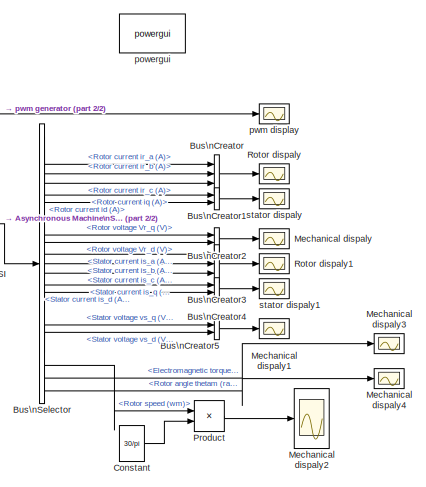
[diagram: root canvas - part 1/2, right side, full height]
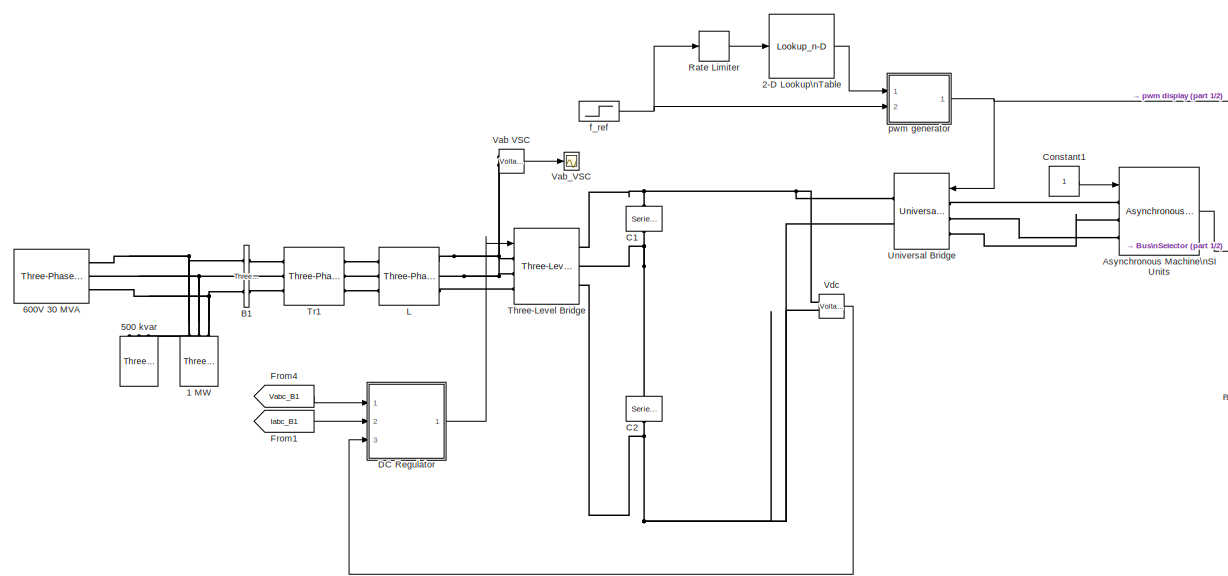
[diagram: root canvas - part 2/2, most of the canvas]
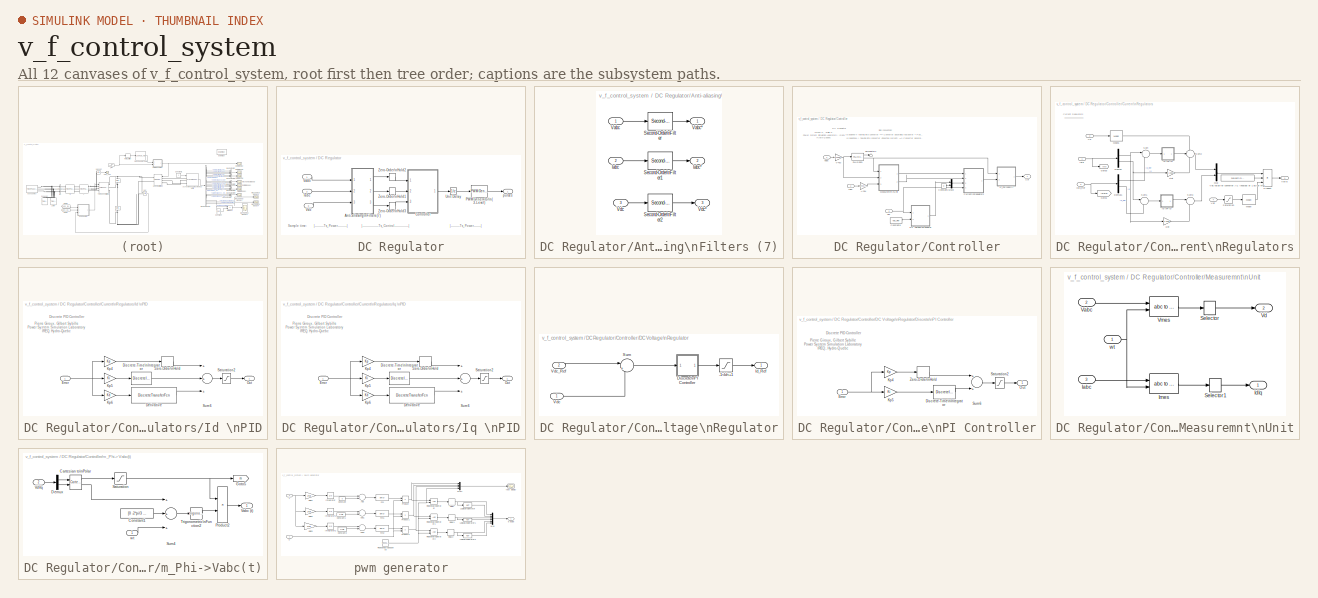
[diagram: thumbnail index - all 12 canvases of the model, root first then tree order]
MODEL v_f_control_system
KIND model
BLOCK [Reference] 1 MW  REF=powerlib/Elements/Three-Phase\nSeries RLC Load
  ActivePower = 1e6
  AttributesFormatString = \\n
  CapacitivePower = 0
  Configuration = Y (grounded)
  InductivePower = 0
  LConnTagsString = A|B|C
  LoadType = constant Z
  Measurements = None
  NominalFrequency = 60
  NominalVoltage = 600
  Pabc = [10e3 9e3 11e3]
  Pabcp = [10e3 9e3 11e3]
  Ports = [0, 0, 0, 0, 0, 3]
  QCabc = [100 90 110]
  QCabcp = [100 90 110]
  QLabc = [100 90 110]
  QLabcp = [100 90 110]
  SID = 88
  SourceBlock = powerlib/Elements/Three-Phase\nSeries RLC Load
  SourceProductBaseCode = PS
  SourceProductName = Simscape Power Systems
  SourceType = Three-Phase Series RLC Load
  UnbalancedPower = off
  Vabc = [1e3 1e3 1e3]
  Vabcp = [1e3 1e3 1e3]
BLOCK [Lookup_n-D] 2-D Lookup\nTable
  BreakpointsForDimension1 = [0 5 25 50 100]
  BreakpointsForDimension2 = [1:3]
  NumberOfTableDimensions = 1
  Ports = [1, 1]
  RndMeth = Simplest
  SID = 50
  Table = [0.1 0.1 0.5 1 1]
BLOCK [Reference] 500 kvar  REF=powerlib/Elements/Three-Phase\nSeries RLC Load
  ActivePower = 0.5e6/100
  AttributesFormatString = \\n
  CapacitivePower = 0.5e6
  Configuration = Y (grounded)
  InductivePower = 0
  LConnTagsString = A|B|C
  LoadType = constant Z
  Measurements = None
  NominalFrequency = 60
  NominalVoltage = 600
  Pabc = [10e3 9e3 11e3]
  Pabcp = [10e3 9e3 11e3]
  Ports = [0, 0, 0, 0, 0, 3]
  QCabc = [100 90 110]
  QCabcp = [100 90 110]
  QLabc = [100 90 110]
  QLabcp = [100 90 110]
  SID = 89
  SourceBlock = powerlib/Elements/Three-Phase\nSeries RLC Load
  SourceProductBaseCode = PS
  SourceProductName = Simscape Power Systems
  SourceType = Three-Phase Series RLC Load
  UnbalancedPower = off
  Vabc = [1e3 1e3 1e3]
  Vabcp = [1e3 1e3 1e3]
BLOCK [Reference] 600V 30 MVA  REF=powerlib/Electrical\nSources/Three-Phase Source
  BaseVoltage = 600
  BusType = swing
  Frequency = 60
  Inductance = 19.2e-3
  InternalConnection = Yg
  NonIdealSource = on
  PhaseAngle = 0
  PhaseAngles_phases = [0 -120 +120]
  Ports = [0, 0, 0, 0, 0, 0, 3]
  Pref = 0
  Prefabc = [10e3, 10e3, 10e3]
  Qmax = inf
  Qmin = -inf
  Qref = 0
  Qrefabc = [0, 0, 0]
  Resistance = 0.724
  SID = 90
  ShortCircuitLevel = 30e6
  SourceBlock = powerlib/Electrical\nSources/Three-Phase Source
  SourceProductBaseCode = PS
  SourceProductName = Simscape Power Systems
  SourceType = Three-Phase Source
  SpecifyImpedance = on
  Voltage = 110
  VoltagePhases = off
  Voltage_phases = [25e3 25e3 25e3]/sqrt(3)
  XRratio = 10
BLOCK [Reference] Asynchronous Machine\nSI Units  REF=powerlib/Machines/Asynchronous Machine\nSI Units
  AttributesFormatString = \\n
  Cage1 = [ 0.022 0.226/377]
  Cage2 = [ 0.022 0.226/377]
  InitialConditions = [1 0 0 0 0 0 0 0]
  IterativeDiscreteModel = Trapezoidal non iterative
  IterativeModel = Forward Euler
  Lm = 0.3329
  LoadFlowParameters = 1492000
  MeasurementBus = off
  Mechanical = [ 0.0131  0  2 ]
  MechanicalLoad = Torque Tm
  NominalParameters = [ 2200, 380, 50 ]
  Pmec = 0
  PolePairs = 2
  Ports = [1, 1, 0, 0, 0, 3]
  PresetModel = No
  ReferenceFrame = Rotor
  Rotor = [ 2.546 0.01226]
  RotorType = Squirrel-cage
  SID = 2
  Saturation = [14.03593122, 27.81365428, 53.79336849, 72.68890987, 97.98006896, 148.6815601, 215.7428561, 302.9841135, 420.4778367 ; 230, 322, 414, 460, 506, 552, 598, 644, 690]
  ShowDetailedParameters = on
  SimulateSaturation = off
  SourceBlock = powerlib/Machines/Asynchronous Machine\nSI Units
  SourceProductBaseCode = PS
  SourceProductName = Simscape Power Systems
  SourceType = Asynchronous Machine
  Stator = [ 3.478 0.01254]
  TsBlock = -1
  TsPowergui = 0
  Units = SI
BLOCK [Reference] B1  REF=powerlib/Measurements/Three-Phase\nV-I Measurement
  CurrentMeasurement = yes
  Ipu = off
  LabelI = Iabc_B1
  LabelV = Vabc_B1
  OutputType = Magnitude
  PSBequivalent = 0
  Pbase = 100e6
  PhasorSimulation = off
  Ports = [0, 0, 0, 0, 0, 3, 3]
  SID = 91
  SetLabelI = on
  SetLabelV = on
  SourceBlock = powerlib/Measurements/Three-Phase\nV-I Measurement
  SourceProductBaseCode = PS
  SourceProductName = Simscape Power Systems
  SourceType = Three-Phase VI Measurement
  Vbase = 500e3
  VoltageMeasurement = phase-to-ground
  Vpu = off
  VpuLL = off
BLOCK [BusCreator] Bus\nCreator
  DisplayOption = bar
  InheritFromInputs = on
  Inputs = 3
  Ports = [3, 1]
  SID = 64
BLOCK [BusCreator] Bus\nCreator1
  DisplayOption = bar
  InheritFromInputs = on
  Inputs = 2
  Ports = [2, 1]
  SID = 65
BLOCK [BusCreator] Bus\nCreator2
  DisplayOption = bar
  InheritFromInputs = on
  Inputs = 2
  Ports = [2, 1]
  SID = 66
BLOCK [BusCreator] Bus\nCreator3
  DisplayOption = bar
  InheritFromInputs = on
  Inputs = 3
  Ports = [3, 1]
  SID = 67
BLOCK [BusCreator] Bus\nCreator4
  DisplayOption = bar
  InheritFromInputs = on
  Inputs = 2
  Ports = [2, 1]
  SID = 68
BLOCK [BusCreator] Bus\nCreator5
  DisplayOption = bar
  InheritFromInputs = on
  Inputs = 2
  Ports = [2, 1]
  SID = 69
BLOCK [BusSelector] Bus\nSelector
  OutputAsBus = off
  OutputSignals = Rotor measurements.Rotor current ir_a (A),Rotor measurements.Rotor current ir_b (A),Rotor measurements.Rotor current ir_c (A),Rotor measurements.Rotor current  iq (A),Rotor measurements.Rotor current  id (A),Rotor measurements.Rotor flux phir_q (V s),Rotor measurements.Rotor flux phir_d (V s),Rotor measurements.Rotor voltage Vr_q (V),Rotor measurements.Rotor voltage Vr_d (V),Stator measurements.St...<+483ch>
  Ports = [1, 21]
  SID = 55
BLOCK [Reference] C1  REF=powerlib/Elements/Series RLC Branch
  AttributesFormatString = \\n
  BranchType = C
  Capacitance = 0.1
  Inductance = 1.0
  InitialCurrent = 0
  InitialVoltage = 0
  LConnTagsString = __new0
  Measurements = None
  Ports = [0, 0, 0, 0, 0, 1, 1]
  RConnTagsString = __new0
  Resistance = 1.0
  SID = 92
  SetiL0 = off
  Setx0 = off
  SourceBlock = powerlib/Elements/Series RLC Branch
  SourceProductBaseCode = PS
  SourceProductName = Simscape Power Systems
  SourceType = Series RLC Branch
BLOCK [Reference] C2  REF=powerlib/Elements/Series RLC Branch
  AttributesFormatString = \\n
  BranchType = C
  Capacitance = 0.1
  Inductance = 1.0
  InitialCurrent = 0
  InitialVoltage = 0
  LConnTagsString = __new0
  Measurements = None
  Ports = [0, 0, 0, 0, 0, 1, 1]
  RConnTagsString = __new0
  Resistance = 1.0
  SID = 93
  SetiL0 = off
  Setx0 = off
  SourceBlock = powerlib/Elements/Series RLC Branch
  SourceProductBaseCode = PS
  SourceProductName = Simscape Power Systems
  SourceType = Series RLC Branch
BLOCK [Constant] Constant
  SID = 81
  Value = 30/pi
BLOCK [Constant] Constant1
  SID = 86
BLOCK [SubSystem] DC Regulator
  Ports = [3, 1]
  RequestExecContextInheritance = off
  SID = 94
  Variant = off
BLOCK [SubSystem] DC Regulator/Anti-aliasing\nFilters (7)
  Ports = [3, 3]
  RequestExecContextInheritance = off
  SID = 98
  Variant = off
BLOCK [Outport] DC Regulator/Anti-aliasing\nFilters (7)/ Vabc*
  IconDisplay = Port number
  SID = 105
BLOCK [Outport] DC Regulator/Anti-aliasing\nFilters (7)/ Vdc*
  IconDisplay = Port number
  Port = 3
  SID = 107
BLOCK [Inport] DC Regulator/Anti-aliasing\nFilters (7)/Iabc 
  IconDisplay = Port number
  Port = 2
  PortDimensions = 3
  SID = 100
BLOCK [Outport] DC Regulator/Anti-aliasing\nFilters (7)/Iabc*
  IconDisplay = Port number
  Port = 2
  SID = 106
BLOCK [Reference] DC Regulator/Anti-aliasing\nFilters (7)/Second-Order\nFilter  REF=powerlib_meascontrol/Filters/Second-Order\nFilter
  FilterType = Lowpass
  Fo = Fc
  FreqRange = [0, 500, 1]
  Initialize = off
  PlotResponse = off
  Ports = [1, 1]
  SID = 102
  SourceBlock = powerlib_meascontrol/Filters/Second-Order\nFilter
  SourceProductBaseCode = PS
  SourceProductName = Simscape Power Systems
  SourceType = Second-Order Filter
  Ts = Ts
  Vac_Init = [0,  0,  60]
  Vdc_Init = 0
  Zeta = 0.707
BLOCK [Reference] DC Regulator/Anti-aliasing\nFilters (7)/Second-Order\nFilter1  REF=powerlib_meascontrol/Filters/Second-Order\nFilter
  FilterType = Lowpass
  Fo = Fc
  FreqRange = [0, 500, 1]
  Initialize = off
  PlotResponse = off
  Ports = [1, 1]
  SID = 103
  SourceBlock = powerlib_meascontrol/Filters/Second-Order\nFilter
  SourceProductBaseCode = PS
  SourceProductName = Simscape Power Systems
  SourceType = Second-Order Filter
  Ts = Ts
  Vac_Init = [0,  0,  60]
  Vdc_Init = 0
  Zeta = 0.707
BLOCK [Reference] DC Regulator/Anti-aliasing\nFilters (7)/Second-Order\nFilter2  REF=powerlib_meascontrol/Filters/Second-Order\nFilter
  FilterType = Lowpass
  Fo = Fc
  FreqRange = [0, 500, 1]
  Initialize = off
  PlotResponse = off
  Ports = [1, 1]
  SID = 104
  SourceBlock = powerlib_meascontrol/Filters/Second-Order\nFilter
  SourceProductBaseCode = PS
  SourceProductName = Simscape Power Systems
  SourceType = Second-Order Filter
  Ts = Ts
  Vac_Init = [0,  0,  60]
  Vdc_Init = 0
  Zeta = 0.707
BLOCK [Inport] DC Regulator/Anti-aliasing\nFilters (7)/Vabc
  IconDisplay = Port number
  PortDimensions = 3
  SID = 99
BLOCK [Inport] DC Regulator/Anti-aliasing\nFilters (7)/Vdc 
  IconDisplay = Port number
  Port = 3
  PortDimensions = 1
  SID = 101
BLOCK [SubSystem] DC Regulator/Controller
  Ports = [3, 1]
  RequestExecContextInheritance = off
  SID = 108
  Variant = off
BLOCK [Gain] DC Regulator/Controller/A->pu
  Gain = sqrt(3)*Vnom/sqrt(2)/Pnom
  SID = 112
BLOCK [Constant] DC Regulator/Controller/Constant1
  SID = 113
  Value = 0
BLOCK [Constant] DC Regulator/Controller/Constant6
  SID = 114
  Value = Vdc_Ref
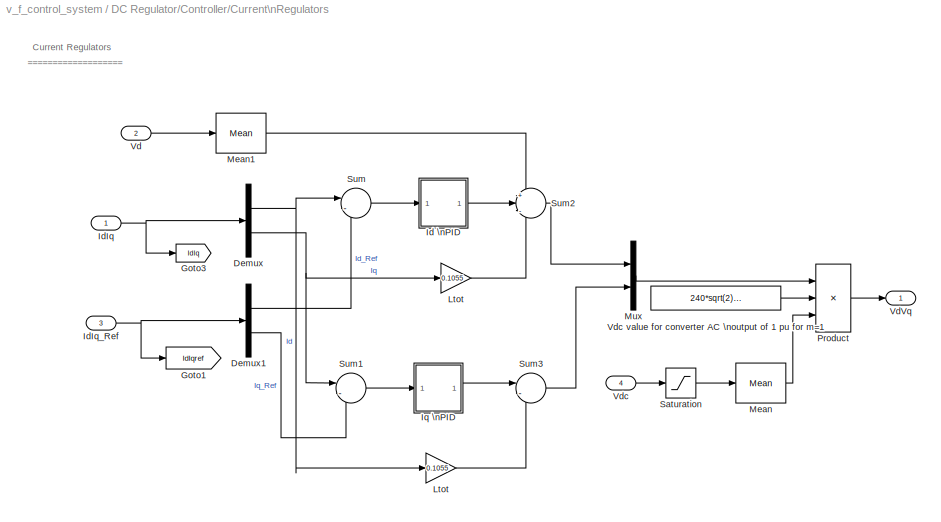
BLOCK [SubSystem] DC Regulator/Controller/Current\nRegulators
  Ports = [4, 1]
  RequestExecContextInheritance = off
  SID = 115
  Variant = off
BLOCK [Gain] DC Regulator/Controller/Current\nRegulators/ Ltot
  Gain = 0.1055
  SID = 120
BLOCK [Demux] DC Regulator/Controller/Current\nRegulators/Demux
  Outputs = 2
  Ports = [1, 2]
  SID = 121
BLOCK [Demux] DC Regulator/Controller/Current\nRegulators/Demux1
  Outputs = 2
  Ports = [1, 2]
  SID = 122
BLOCK [Goto] DC Regulator/Controller/Current\nRegulators/Goto1
  GotoTag = IdIqref
  SID = 123
  TagVisibility = global
BLOCK [Goto] DC Regulator/Controller/Current\nRegulators/Goto3
  GotoTag = IdIq
  SID = 124
  TagVisibility = global
BLOCK [SubSystem] DC Regulator/Controller/Current\nRegulators/Id \nPID
  DialogController = POWERSYS.PowerSysDialog
  Ports = [1, 1]
  RequestExecContextInheritance = off
  SID = 125
  Variant = off
BLOCK [DiscreteTransferFcn] DC Regulator/Controller/Current\nRegulators/Id \nPID/Derivative 
  Denominator = [Ts+2*TcD Ts-2*TcD]
  InputPortMap = u0
  Numerator = [2 -2]
  Ports = [1, 1]
  SID = 125:2
  SampleTime = Ts
BLOCK [DiscreteIntegrator] DC Regulator/Controller/Current\nRegulators/Id \nPID/Discrete-Time\nIntegrator
  ICPrevOutput = DiscIntNeverNeededParam
  ICPrevScaledInput = DiscIntNeverNeededParam
  InitialCondition = Init
  LimitOutput = on
  LowerSaturationLimit = LowerLimit
  Ports = [1, 1]
  SID = 125:3
  SampleTime = Ts
  UpperSaturationLimit = UpperLimit
BLOCK [Inport] DC Regulator/Controller/Current\nRegulators/Id \nPID/Error
  IconDisplay = Port number
  SID = 125:1
  SampleTime = Ts
BLOCK [Gain] DC Regulator/Controller/Current\nRegulators/Id \nPID/Kp4
  Gain = Kp
  SID = 125:4
  SampleTime = Ts
BLOCK [Gain] DC Regulator/Controller/Current\nRegulators/Id \nPID/Kp5
  Gain = Ki
  SID = 125:5
  SampleTime = Ts
BLOCK [Gain] DC Regulator/Controller/Current\nRegulators/Id \nPID/Kp6
  Gain = Kd
  SID = 125:6
  SampleTime = Ts
BLOCK [Outport] DC Regulator/Controller/Current\nRegulators/Id \nPID/Out
  IconDisplay = Port number
  InitialOutput = 0
  SID = 125:10
  SampleTime = Ts
BLOCK [Saturate] DC Regulator/Controller/Current\nRegulators/Id \nPID/Saturation2
  InputPortMap = u0
  LowerLimit = LowerLimit
  Ports = [1, 1]
  SID = 125:7
  SampleTime = Ts
  UpperLimit = UpperLimit
BLOCK [Sum] DC Regulator/Controller/Current\nRegulators/Id \nPID/Sum6
  Inputs = +++
  Ports = [3, 1]
  SID = 125:8
  SampleTime = Ts
BLOCK [ZeroOrderHold] DC Regulator/Controller/Current\nRegulators/Id \nPID/Zero-Order\nHold
  SID = 125:9
  SampleTime = Ts
BLOCK [Inport] DC Regulator/Controller/Current\nRegulators/IdIq
  IconDisplay = Port number
  PortDimensions = 2
  SID = 116
BLOCK [Inport] DC Regulator/Controller/Current\nRegulators/IdIq_Ref
  IconDisplay = Port number
  Port = 3
  PortDimensions = 2
  SID = 118
BLOCK [SubSystem] DC Regulator/Controller/Current\nRegulators/Iq \nPID
  DialogController = POWERSYS.PowerSysDialog
  Ports = [1, 1]
  RequestExecContextInheritance = off
  SID = 126
  Variant = off
BLOCK [DiscreteTransferFcn] DC Regulator/Controller/Current\nRegulators/Iq \nPID/Derivative 
  Denominator = [Ts+2*TcD Ts-2*TcD]
  InputPortMap = u0
  Numerator = [2 -2]
  Ports = [1, 1]
  SID = 126:2
  SampleTime = Ts
BLOCK [DiscreteIntegrator] DC Regulator/Controller/Current\nRegulators/Iq \nPID/Discrete-Time\nIntegrator
  ICPrevOutput = DiscIntNeverNeededParam
  ICPrevScaledInput = DiscIntNeverNeededParam
  InitialCondition = Init
  LimitOutput = on
  LowerSaturationLimit = LowerLimit
  Ports = [1, 1]
  SID = 126:3
  SampleTime = Ts
  UpperSaturationLimit = UpperLimit
BLOCK [Inport] DC Regulator/Controller/Current\nRegulators/Iq \nPID/Error
  IconDisplay = Port number
  SID = 126:1
  SampleTime = Ts
BLOCK [Gain] DC Regulator/Controller/Current\nRegulators/Iq \nPID/Kp4
  Gain = Kp
  SID = 126:4
  SampleTime = Ts
BLOCK [Gain] DC Regulator/Controller/Current\nRegulators/Iq \nPID/Kp5
  Gain = Ki
  SID = 126:5
  SampleTime = Ts
BLOCK [Gain] DC Regulator/Controller/Current\nRegulators/Iq \nPID/Kp6
  Gain = Kd
  SID = 126:6
  SampleTime = Ts
BLOCK [Outport] DC Regulator/Controller/Current\nRegulators/Iq \nPID/Out
  IconDisplay = Port number
  InitialOutput = 0
  SID = 126:10
  SampleTime = Ts
BLOCK [Saturate] DC Regulator/Controller/Current\nRegulators/Iq \nPID/Saturation2
  InputPortMap = u0
  LowerLimit = LowerLimit
  Ports = [1, 1]
  SID = 126:7
  SampleTime = Ts
  UpperLimit = UpperLimit
BLOCK [Sum] DC Regulator/Controller/Current\nRegulators/Iq \nPID/Sum6
  Inputs = +++
  Ports = [3, 1]
  SID = 126:8
  SampleTime = Ts
BLOCK [ZeroOrderHold] DC Regulator/Controller/Current\nRegulators/Iq \nPID/Zero-Order\nHold
  SID = 126:9
  SampleTime = Ts
BLOCK [Gain] DC Regulator/Controller/Current\nRegulators/Ltot 
  Gain = 0.1055
  SID = 127
BLOCK [Reference] DC Regulator/Controller/Current\nRegulators/Mean  REF=powerlib_meascontrol/Measurements/Mean
  Freq = 60
  Ports = [1, 1]
  SID = 128
  SourceBlock = powerlib_meascontrol/Measurements/Mean
  SourceProductBaseCode = PS
  SourceProductName = Simscape Power Systems
  SourceType = Mean
  Ts = Ts
  Vinit = 500
BLOCK [Reference] DC Regulator/Controller/Current\nRegulators/Mean1  REF=powerlib_meascontrol/Measurements/Mean
  Freq = 60
  Ports = [1, 1]
  SID = 129
  SourceBlock = powerlib_meascontrol/Measurements/Mean
  SourceProductBaseCode = PS
  SourceProductName = Simscape Power Systems
  SourceType = Mean
  Ts = Ts
  Vinit = 1.007
BLOCK [Mux] DC Regulator/Controller/Current\nRegulators/Mux
  DisplayOption = bar
  Inputs = 2
  Ports = [2, 1]
  SID = 130
BLOCK [Product] DC Regulator/Controller/Current\nRegulators/Product
  Inputs = **/
  Ports = [3, 1]
  RndMeth = Floor
  SID = 131
BLOCK [Saturate] DC Regulator/Controller/Current\nRegulators/Saturation
  InputPortMap = u0
  LowerLimit = 10
  Ports = [1, 1]
  SID = 132
  UpperLimit = 10000
BLOCK [Sum] DC Regulator/Controller/Current\nRegulators/Sum
  IconShape = round
  Inputs = |-+
  Ports = [2, 1]
  SID = 133
BLOCK [Sum] DC Regulator/Controller/Current\nRegulators/Sum1
  IconShape = round
  Inputs = |-+
  Ports = [2, 1]
  SID = 134
BLOCK [Sum] DC Regulator/Controller/Current\nRegulators/Sum2
  IconShape = round
  Inputs = +|-|+
  Ports = [3, 1]
  SID = 135
BLOCK [Sum] DC Regulator/Controller/Current\nRegulators/Sum3
  IconShape = round
  Inputs = |--
  Ports = [2, 1]
  SID = 136
BLOCK [Inport] DC Regulator/Controller/Current\nRegulators/Vd
  IconDisplay = Port number
  Port = 2
  SID = 117
BLOCK [Outport] DC Regulator/Controller/Current\nRegulators/VdVq
  IconDisplay = Port number
  SID = 138
BLOCK [Inport] DC Regulator/Controller/Current\nRegulators/Vdc
  IconDisplay = Port number
  Port = 4
  SID = 119
BLOCK [Constant] DC Regulator/Controller/Current\nRegulators/Vdc value for converter AC \noutput of 1 pu for m=1
  SID = 137
  Value = 240*sqrt(2)/(sqrt(3)/2)
BLOCK [SubSystem] DC Regulator/Controller/DC Voltage\nRegulator
  Ports = [2, 1]
  RequestExecContextInheritance = off
  SID = 141
  Variant = off
BLOCK [Saturate] DC Regulator/Controller/DC Voltage\nRegulator/-1<Id<+1
  InputPortMap = u0
  LowerLimit = -1.2
  Ports = [1, 1]
  SID = 144
  UpperLimit = 1.2
BLOCK [SubSystem] DC Regulator/Controller/DC Voltage\nRegulator/Discrete\nPI Controller
  DialogController = POWERSYS.PowerSysDialog
  Ports = [1, 1]
  RequestExecContextInheritance = off
  SID = 145
  Variant = off
BLOCK [DiscreteIntegrator] DC Regulator/Controller/DC Voltage\nRegulator/Discrete\nPI Controller/Discrete-Time\nIntegrator
  ICPrevOutput = DiscIntNeverNeededParam
  ICPrevScaledInput = DiscIntNeverNeededParam
  InitialCondition = Init
  LimitOutput = on
  LowerSaturationLimit = LowerLimit
  Ports = [1, 1]
  SID = 145:2
  SampleTime = Ts
  UpperSaturationLimit = UpperLimit
BLOCK [Inport] DC Regulator/Controller/DC Voltage\nRegulator/Discrete\nPI Controller/Error
  IconDisplay = Port number
  SID = 145:1
  SampleTime = Ts
BLOCK [Gain] DC Regulator/Controller/DC Voltage\nRegulator/Discrete\nPI Controller/Kp4
  Gain = Kp
  SID = 145:3
  SampleTime = Ts
BLOCK [Gain] DC Regulator/Controller/DC Voltage\nRegulator/Discrete\nPI Controller/Kp5
  Gain = Ki
  SID = 145:4
  SampleTime = Ts
BLOCK [Outport] DC Regulator/Controller/DC Voltage\nRegulator/Discrete\nPI Controller/Out
  IconDisplay = Port number
  InitialOutput = 0
  SID = 145:8
  SampleTime = Ts
BLOCK [Saturate] DC Regulator/Controller/DC Voltage\nRegulator/Discrete\nPI Controller/Saturation2
  InputPortMap = u0
  LowerLimit = LowerLimit
  Ports = [1, 1]
  SID = 145:5
  SampleTime = Ts
  UpperLimit = UpperLimit
BLOCK [Sum] DC Regulator/Controller/DC Voltage\nRegulator/Discrete\nPI Controller/Sum6
  Ports = [2, 1]
  SID = 145:6
  SampleTime = Ts
BLOCK [ZeroOrderHold] DC Regulator/Controller/DC Voltage\nRegulator/Discrete\nPI Controller/Zero-Order\nHold
  SID = 145:7
  SampleTime = Ts
BLOCK [Outport] DC Regulator/Controller/DC Voltage\nRegulator/Id_Ref
  IconDisplay = Port number
  InitialOutput = 0
  SID = 147
BLOCK [Sum] DC Regulator/Controller/DC Voltage\nRegulator/Sum
  IconShape = round
  Inputs = |+-
  Ports = [2, 1]
  SID = 146
BLOCK [Inport] DC Regulator/Controller/DC Voltage\nRegulator/Vdc
  IconDisplay = Port number
  SID = 142
BLOCK [Inport] DC Regulator/Controller/DC Voltage\nRegulator/Vdc_Ref
  IconDisplay = Port number
  Port = 2
  SID = 143
BLOCK [Inport] DC Regulator/Controller/Iabc
  IconDisplay = Port number
  Port = 2
  PortDimensions = 3
  SID = 110
BLOCK [SubSystem] DC Regulator/Controller/Measuremnt\nUnit
  Ports = [3, 2]
  RequestExecContextInheritance = off
  SID = 148
  Variant = off
BLOCK [Inport] DC Regulator/Controller/Measuremnt\nUnit/Iabc
  IconDisplay = Port number
  Port = 3
  SID = 151
BLOCK [Outport] DC Regulator/Controller/Measuremnt\nUnit/IdIq
  IconDisplay = Port number
  SID = 156
BLOCK [Reference] DC Regulator/Controller/Measuremnt\nUnit/Imes  REF=powerlib_meascontrol/Transformations/abc to dq0
  Alignment = 90 degrees behind phase A axis
  Ports = [2, 1]
  SID = 152
  SourceBlock = powerlib_meascontrol/Transformations/abc to dq0
  SourceProductBaseCode = PS
  SourceProductName = Simscape Power Systems
  SourceType = abc to dq0 Transformation
BLOCK [Selector] DC Regulator/Controller/Measuremnt\nUnit/Selector
  IndexOptions = Index vector (dialog)
  Indices = 1
  InputPortWidth = 3
  OutputSizes = 1
  Ports = [1, 1]
  SID = 153
BLOCK [Selector] DC Regulator/Controller/Measuremnt\nUnit/Selector1
  IndexOptions = Index vector (dialog)
  Indices = [1 2]
  InputPortWidth = 3
  OutputSizes = 1
  Ports = [1, 1]
  SID = 154
BLOCK [Inport] DC Regulator/Controller/Measuremnt\nUnit/Vabc
  IconDisplay = Port number
  Port = 2
  SID = 150
BLOCK [Outport] DC Regulator/Controller/Measuremnt\nUnit/Vd
  IconDisplay = Port number
  Port = 2
  SID = 157
BLOCK [Reference] DC Regulator/Controller/Measuremnt\nUnit/Vmes  REF=powerlib_meascontrol/Transformations/abc to dq0
  Alignment = 90 degrees behind phase A axis
  Ports = [2, 1]
  SID = 155
  SourceBlock = powerlib_meascontrol/Transformations/abc to dq0
  SourceProductBaseCode = PS
  SourceProductName = Simscape Power Systems
  SourceType = abc to dq0 Transformation
BLOCK [Inport] DC Regulator/Controller/Measuremnt\nUnit/wt
  IconDisplay = Port number
  SID = 149
BLOCK [Mux] DC Regulator/Controller/Mux3
  DisplayOption = bar
  Inputs = 2
  Ports = [2, 1]
  SID = 158
BLOCK [Reference] DC Regulator/Controller/PLL\n(3ph)  REF=powerlib_meascontrol/PLL/PLL\n(3ph)
  AGC = off
  FilterCutOffFreq = 25
  Fmin = 45
  MaxRateChangeFreq = 12
  ParK = [60 1400]
  Par_Init = [-45 60]
  Ports = [1, 2]
  SID = 159
  SourceBlock = powerlib_meascontrol/PLL/PLL\n(3ph)
  SourceProductBaseCode = PS
  SourceProductName = Simscape Power Systems
  SourceType = PLL (3ph)
  TcD = 1e-4
  Ts = Ts
BLOCK [Terminator] DC Regulator/Controller/Terminator4
  SID = 160
BLOCK [Outport] DC Regulator/Controller/Ust
  IconDisplay = Port number
  SID = 174
BLOCK [Gain] DC Regulator/Controller/V->pu
  Gain = 1/(Vnom*sqrt(2)/sqrt(3))
  SID = 161
BLOCK [Inport] DC Regulator/Controller/Vabc
  IconDisplay = Port number
  PortDimensions = 3
  SID = 109
BLOCK [Inport] DC Regulator/Controller/Vdc
  IconDisplay = Port number
  Port = 3
  PortDimensions = 1
  SID = 111
BLOCK [SubSystem] DC Regulator/Controller/m_Phi->Vabc(t)
  Ports = [2, 1]
  RequestExecContextInheritance = off
  SID = 162
  Variant = off
BLOCK [Reference] DC Regulator/Controller/m_Phi->Vabc(t)/Cartesian to\nPolar  REF=simulink_extras/Transformations/Cartesian to\nPolar
  Ports = [2, 2]
  SID = 165
  SourceBlock = simulink_extras/Transformations/Cartesian to\nPolar
  SourceProductName = Simulink Extras
  SourceType = Cart2Polar
BLOCK [Constant] DC Regulator/Controller/m_Phi->Vabc(t)/Constant1
  SID = 166
  Value = [0 -2*pi/3 2*pi/3]
BLOCK [Demux] DC Regulator/Controller/m_Phi->Vabc(t)/Demux
  Outputs = 2
  Ports = [1, 2]
  SID = 167
BLOCK [Goto] DC Regulator/Controller/m_Phi->Vabc(t)/Goto5
  GotoTag = m
  SID = 168
  TagVisibility = global
BLOCK [Product] DC Regulator/Controller/m_Phi->Vabc(t)/Product2
  Ports = [2, 1]
  RndMeth = Floor
  SID = 169
BLOCK [Saturate] DC Regulator/Controller/m_Phi->Vabc(t)/Saturation
  InputPortMap = u0
  LowerLimit = 0
  Ports = [1, 1]
  SID = 170
  UpperLimit = 1
BLOCK [Sum] DC Regulator/Controller/m_Phi->Vabc(t)/Sum4
  Inputs = +++
  Ports = [3, 1]
  SID = 171
BLOCK [Trigonometry] DC Regulator/Controller/m_Phi->Vabc(t)/Trigonometric\nFunction2
  Ports = [1, 1]
  SID = 172
BLOCK [Outport] DC Regulator/Controller/m_Phi->Vabc(t)/Vabc (t)
  IconDisplay = Port number
  SID = 173
BLOCK [Inport] DC Regulator/Controller/m_Phi->Vabc(t)/VdVq
  IconDisplay = Port number
  Port = 2
  SID = 164
BLOCK [Inport] DC Regulator/Controller/m_Phi->Vabc(t)/wt
  IconDisplay = Port number
  SID = 163
BLOCK [Inport] DC Regulator/Iabc
  IconDisplay = Port number
  Port = 2
  PortDimensions = 3
  SID = 96
BLOCK [Reference] DC Regulator/PWM Generator\n(3-Level)  REF=powerlib_meascontrol/Pulse & Signal\nGenerators/PWM Generator\n(3-Level)
  Fc = 27*60
  Freq = 60
  ModulatingSignals = off
  ModulatorMode = Unsynchronized
  ModulatorType = Three-phase bridge (12 pulses)
  Phase = 0
  Ports = [1, 1]
  SID = 180
  SourceBlock = powerlib_meascontrol/Pulse & Signal\nGenerators/PWM Generator\n(3-Level)
  SourceProductBaseCode = PS
  SourceProductName = Simscape Power Systems
  SourceType = PWM Generator (3-Level)
  Ts = Ts_Power
  m = 0.8
  nF = 27
BLOCK [UnitDelay] DC Regulator/Unit Delay
  SID = 181
  SampleTime = Ts_Control
BLOCK [Inport] DC Regulator/Vabc
  IconDisplay = Port number
  PortDimensions = 3
  SID = 95
BLOCK [Inport] DC Regulator/Vdc
  IconDisplay = Port number
  Port = 3
  PortDimensions = 1
  SID = 97
BLOCK [ZeroOrderHold] DC Regulator/Zero-Order\nHold1
  SID = 182
  SampleTime = Ts_Control
BLOCK [ZeroOrderHold] DC Regulator/Zero-Order\nHold2
  SID = 183
  SampleTime = Ts_Control
BLOCK [ZeroOrderHold] DC Regulator/Zero-Order\nHold3
  SID = 184
  SampleTime = Ts_Control
BLOCK [Outport] DC Regulator/pulses
  IconDisplay = Port number
  SID = 185
BLOCK [From] From1
  CloseFcn = tagdialog Close
  GotoTag = Iabc_B1
  SID = 190
  TagVisibility = global
BLOCK [From] From4
  CloseFcn = tagdialog Close
  GotoTag = Vabc_B1
  SID = 191
  TagVisibility = global
BLOCK [Reference] L  REF=powerlib/Elements/Three-Phase\nSeries RLC Branch
  AttributesFormatString = \\n
  BranchType = RL
  Capacitance = inf
  Inductance = 20e-6
  LConnTagsString = A|B|C
  Measurements = None
  Ports = [0, 0, 0, 0, 0, 3, 3]
  RConnTagsString = A|B|C
  Resistance = 0.1e-3
  SID = 192
  SourceBlock = powerlib/Elements/Three-Phase\nSeries RLC Branch
  SourceProductBaseCode = PS
  SourceProductName = Simscape Power Systems
  SourceType = Three-Phase Series RLC Branch
BLOCK [Scope] Mechanical dispaly
  NumInputPorts = 1
  Ports = [1]
  SID = 56
  ScopeSpecificationString = C++SS(StrPVP('Location','[5, 48, 1445, 859]'),StrPVP('Open','off'),StrPVP('ZoomMode','xonly'),MxPVP('AxesTitles',53,'struct(''axes1'',''%<SignalLabel>'')'),MxPVP('ScopeGraphics',56,'struct(''FigureColor'',''[0.5 0.5 0.5]'',''AxesColor'',''[0 0 0]'',''AxesTickColor'',''[1 1 1]'',''LineColors'',''[1 1 0;1 0 1;0 1 1;1 0 0;0 1 0;0 0 1]'',''LineStyles'',''-|-|-|-|-|-'',''LineWidths'',''[0.5 0.5 0.5 0.5...<+297ch>
BLOCK [Scope] Mechanical dispaly1
  NumInputPorts = 1
  Ports = [1]
  SID = 70
  ScopeSpecificationString = Simulink.scopes.TimeScopeBlockCfg('CurrentConfiguration', extmgr.ConfigurationSet(extmgr.Configuration('Core','General UI',true),extmgr.Configuration('Core','Source UI',true),extmgr.Configuration('Sources','WiredSimulink',true,'DataLoggingVariableName','ScopeData5','DataLoggingSaveFormat','StructureWithTime','DataLoggingDecimation','1','DataLoggingDecimateData',true),extmgr.Configuration('Visuals'...<+875ch>
BLOCK [Scope] Mechanical dispaly2
  NumInputPorts = 1
  Ports = [1]
  SID = 80
  ScopeSpecificationString = Simulink.scopes.TimeScopeBlockCfg('CurrentConfiguration', extmgr.ConfigurationSet(extmgr.Configuration('Core','General UI',true),extmgr.Configuration('Core','Source UI',true),extmgr.Configuration('Sources','WiredSimulink',true,'DataLoggingVariableName','ScopeData8','DataLoggingSaveFormat','StructureWithTime','DataLoggingDecimation','1','DataLoggingDecimateData',true),extmgr.Configuration('Visuals'...<+3630ch>
BLOCK [Scope] Mechanical dispaly3
  NumInputPorts = 1
  Ports = [1]
  SID = 83
  ScopeSpecificationString = Simulink.scopes.TimeScopeBlockCfg('CurrentConfiguration', extmgr.ConfigurationSet(extmgr.Configuration('Core','General UI',true),extmgr.Configuration('Core','Source UI',true),extmgr.Configuration('Sources','WiredSimulink',true,'DataLoggingVariableName','ScopeData9','DataLoggingSaveFormat','StructureWithTime','DataLoggingDecimation','1','DataLoggingDecimateData',true),extmgr.Configuration('Visuals'...<+3709ch>
BLOCK [Scope] Mechanical dispaly4
  NumInputPorts = 1
  Ports = [1]
  SID = 84
  ScopeSpecificationString = Simulink.scopes.TimeScopeBlockCfg('CurrentConfiguration', extmgr.ConfigurationSet(extmgr.Configuration('Core','General UI',true),extmgr.Configuration('Core','Source UI',true),extmgr.Configuration('Sources','WiredSimulink',true,'DataLoggingVariableName','ScopeData10','DataLoggingSaveFormat','StructureWithTime','DataLoggingDecimation','1','DataLoggingDecimateData',true),extmgr.Configuration('Visuals...<+1675ch>
BLOCK [Product] Product
  InputSameDT = off
  OutDataTypeStr = Inherit: Inherit via internal rule
  Ports = [2, 1]
  RndMeth = Floor
  SID = 82
  SaturateOnIntegerOverflow = off
BLOCK [RateLimiter] Rate Limiter
  FallingSlewLimit = -200
  RisingSlewLimit = 200
  SID = 49
BLOCK [Scope] Rotor dispaly
  NumInputPorts = 1
  Ports = [1]
  SID = 57
  ScopeSpecificationString = C++SS(StrPVP('Location','[5, 48, 1445, 859]'),StrPVP('Open','off'),StrPVP('ZoomMode','xonly'),MxPVP('AxesTitles',53,'struct(''axes1'',''%<SignalLabel>'')'),MxPVP('ScopeGraphics',56,'struct(''FigureColor'',''[0.501960784313725 0.501960784313725 0.501960784313725]'',''AxesColor'',''[0 0 0]'',''AxesTickColor'',''[1 1 1]'',''LineColors'',''[1 1 0;1 0 1;0 1 1;1 0 0;0 1 0;0 0 1]'',''LineStyles'',''-|-|-...<+346ch>
BLOCK [Scope] Rotor dispaly1
  NumInputPorts = 1
  Ports = [1]
  SID = 71
  ScopeSpecificationString = C++SS(StrPVP('Location','[5, 48, 1445, 859]'),StrPVP('Open','off'),StrPVP('ZoomMode','xonly'),MxPVP('AxesTitles',53,'struct(''axes1'',''%<SignalLabel>'')'),MxPVP('ScopeGraphics',56,'struct(''FigureColor'',''[0.501960784313725 0.501960784313725 0.501960784313725]'',''AxesColor'',''[0 0 0]'',''AxesTickColor'',''[1 1 1]'',''LineColors'',''[1 1 0;1 0 1;0 1 1;1 0 0;0 1 0;0 0 1]'',''LineStyles'',''-|-|-...<+339ch>
BLOCK [Reference] Three-Level Bridge  REF=powerlib/Power\nElectronics/Three-Level Bridge
  Arms = 3
  AttributesFormatString = \\n
  Device = IGBT / Diodes
  ForwardVoltages = [  2 1 ]
  Measurements = All voltages and currents
  Ports = [1, 0, 0, 0, 0, 3, 3]
  Ron = 0.2e-3
  SID = 194
  SbubberCapacitance = 1e-6
  SnubberResistance = 50
  SourceBlock = powerlib/Power\nElectronics/Three-Level Bridge
  SourceProductBaseCode = PS
  SourceProductName = Simscape Power Systems
  SourceType = Three-Level Bridge
BLOCK [Reference] Tr1  REF=powerlib/Elements/Three-Phase\nTransformer\n(Two Windings)
  AttributesFormatString = \\n
  BreakLoop = off
  CoreType = Three single-phase transformers
  DataFile = 'hysteresis'
  DataType = off
  Hysteresis = off
  InitialFluxes = [ 0.8 , -0.8 , 0.7 ]
  L0 = 0.5
  Lm = 500
  Measurements = None
  MoreParameters = off
  NominalPower = [ 500e3 , 60 ]
  Ports = [0, 0, 0, 0, 0, 3, 3]
  Rm = 500
  SID = 195
  Saturation = [ 0,0 ; 0.0024,1.2 ; 1.0,1.52 ]
  SetInitialFlux = off
  SetSaturation = off
  SourceBlock = powerlib/Elements/Three-Phase\nTransformer\n(Two Windings)
  SourceProductBaseCode = PS
  SourceProductName = Simscape Power Systems
  SourceType = Three-Phase Transformer (Two Windings)
  TransfoNumber = 0
  UNITS = pu
  Winding1 = [ 110 , 0.04/30/2 , 0.04 ]
  Winding1Connection = Yg
  Winding2 = [ 80 , 0.04/30/2 , 0.0 ]
  Winding2Connection = Delta (D1)
BLOCK [Reference] Universal Bridge  REF=powerlib/Power\nElectronics/Universal Bridge
  Arms = 3
  Device = IGBT / Diodes
  ForwardVoltage = 0
  ForwardVoltages = [  0  0  ]
  GTOparameters = [ 10e-6 , 20e-6 ]
  IGBTparameters = [ 1e-6 , 2e-6 ]
  Lon = 0
  Measurements = None
  Measurements_2 = None
  Ports = [1, 0, 0, 0, 0, 3, 2]
  Ron = 1e-3
  SID = 45
  SnubberCapacitance = inf
  SnubberResistance = 1e5
  SourceBlock = powerlib/Power\nElectronics/Universal Bridge
  SourceProductBaseCode = PS
  SourceProductName = Simscape Power Systems
  SourceType = Universal Bridge
  converterType = Rectifier
BLOCK [Reference] Vab VSC  REF=powerlib/Measurements/Voltage Measurement
  AttributesFormatString = \\n
  OutputType = Magnitude
  PSBequivalent = 0
  PhasorSimulation = off
  Ports = [0, 1, 0, 0, 0, 2]
  SID = 196
  SourceBlock = powerlib/Measurements/Voltage Measurement
  SourceProductBaseCode = PS
  SourceProductName = Simscape Power Systems
  SourceType = Voltage Measurement
  Tag = PoWeRsYsTeMmEaSuReMeNt
BLOCK [Scope] Vab_VSC
  NumInputPorts = 1
  Ports = [1]
  SID = 197
  ScopeSpecificationString = Simulink.scopes.TimeScopeBlockCfg('CurrentConfiguration', extmgr.ConfigurationSet(extmgr.Configuration('Core','General UI',true),extmgr.Configuration('Core','Source UI',true),extmgr.Configuration('Sources','WiredSimulink',true,'DataLogging',true,'DataLoggingVariableName','ScopeData11','DataLoggingSaveFormat','StructureWithTime','SampleTime','Ts_Power','DataLoggingDecimation','1','DataLoggingDecima...<+1724ch>
BLOCK [Reference] Vdc   REF=powerlib/Measurements/Voltage Measurement
  AttributesFormatString = \\n
  OutputType = Magnitude
  PSBequivalent = 0
  PhasorSimulation = off
  Ports = [0, 1, 0, 0, 0, 2]
  SID = 198
  SourceBlock = powerlib/Measurements/Voltage Measurement
  SourceProductBaseCode = PS
  SourceProductName = Simscape Power Systems
  SourceType = Voltage Measurement
  Tag = PoWeRsYsTeMmEaSuReMeNt
BLOCK [Step] f_ref
  After = 33
  Before = 33
  SID = 52
  SampleTime = 0
  Time = 100
BLOCK [Reference] powergui  REF=powerlib/powergui
  CurrentSourceSwitches = off
  DisableRonSwitches = off
  DisableSnubberDevices = off
  DisableVfSwitches = off
  DisplayEquations = off
  DisplayStyle = 1
  EnableUseOfTLC = off
  ErrMax = 1e-4
  ExternalGateDelay = off
  Frange = [0:2:500]
  FreqAxis = off
  FunctionMessages = off
  HookPort = off
  Interpol = off
  Iterations = 50
  MaxFrequency = 1000
  Pbase = 100e6
  Ports = []
  Priority = 1
  ResistiveCurrentMeasurement = off
  RestoreLinks = warning
  RmsSteady = 1
  SID = 59
  SPID = off
  SampleTime = 1e-5
  ShowGrid = off
  SolverType = Tustin
  SourceBlock = powerlib/powergui
  SourceProductBaseCode = PS
  SourceProductName = Simscape Power Systems
  SourceType = PSB option menu block
  StartTime = 0.0
  SwTol = 0
  Ts = 100
  UnitsV = kV
  UnitsW = MW
  Xlog = on
  Ylog = off
  ZoomFFT = off
  buscounter = 0
  cycles = 1
  display = off
  echomessages = off
  frequency = 60
  frequencyindice = 50
  frequencyindicesteady = 1
  fundamental = 60
  methode = off
  save = off
  structure = 0
  variable = ZData
  x0status = blocks
BLOCK [Scope] pwm display
  NumInputPorts = 1
  Ports = [1]
  SID = 60
  ScopeSpecificationString = Simulink.scopes.TimeScopeBlockCfg('CurrentConfiguration', extmgr.ConfigurationSet(extmgr.Configuration('Core','General UI',true),extmgr.Configuration('Core','Source UI',true),extmgr.Configuration('Sources','WiredSimulink',true,'DataLoggingVariableName','ScopeData3','DataLoggingSaveFormat','StructureWithTime','DataLoggingDecimation','1','DataLoggingDecimateData',true),extmgr.Configuration('Visuals'...<+1764ch>
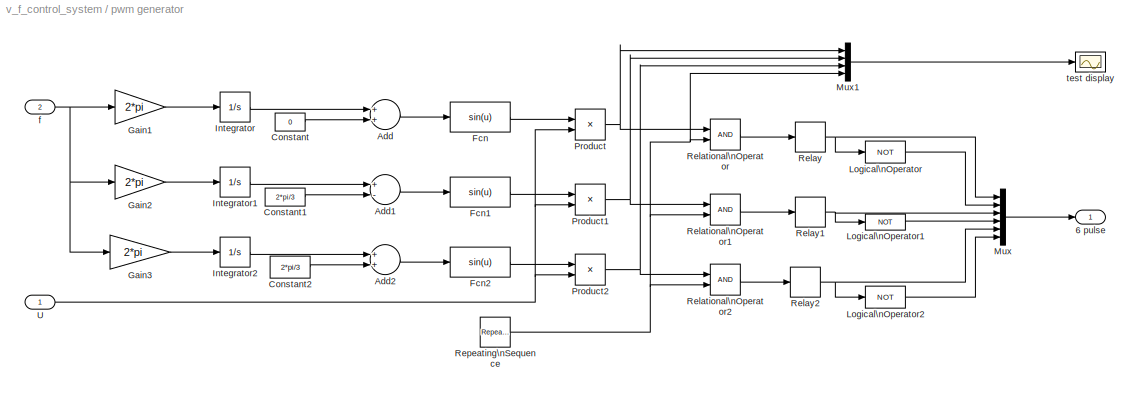
BLOCK [SubSystem] pwm generator
  Ports = [2, 1]
  RequestExecContextInheritance = off
  SID = 4
  Variant = off
BLOCK [Outport] pwm generator/6 pulse
  IconDisplay = Port number
  SID = 6
BLOCK [Sum] pwm generator/Add
  InputSameDT = off
  OutDataTypeStr = Inherit: Inherit via internal rule
  Ports = [2, 1]
  SID = 16
  SaturateOnIntegerOverflow = off
BLOCK [Sum] pwm generator/Add1
  InputSameDT = off
  Inputs = +-
  OutDataTypeStr = Inherit: Inherit via internal rule
  Ports = [2, 1]
  SID = 17
  SaturateOnIntegerOverflow = off
BLOCK [Sum] pwm generator/Add2
  InputSameDT = off
  OutDataTypeStr = Inherit: Inherit via internal rule
  Ports = [2, 1]
  SID = 18
  SaturateOnIntegerOverflow = off
BLOCK [Constant] pwm generator/Constant
  SID = 19
  Value = 0
BLOCK [Constant] pwm generator/Constant1
  SID = 20
  Value = 2*pi/3
BLOCK [Constant] pwm generator/Constant2
  SID = 21
  Value = 2*pi/3
BLOCK [Fcn] pwm generator/Fcn
  Expr = sin(u)
  SID = 22
BLOCK [Fcn] pwm generator/Fcn1
  Expr = sin(u)
  SID = 23
BLOCK [Fcn] pwm generator/Fcn2
  Expr = sin(u)
  SID = 24
BLOCK [Gain] pwm generator/Gain1
  Gain = 2*pi
  OutDataTypeStr = Inherit: Inherit via internal rule
  ParamDataTypeStr = Inherit: Inherit via internal rule
  SID = 11
  SaturateOnIntegerOverflow = off
BLOCK [Gain] pwm generator/Gain2
  Gain = 2*pi
  OutDataTypeStr = Inherit: Inherit via internal rule
  ParamDataTypeStr = Inherit: Inherit via internal rule
  SID = 12
  SaturateOnIntegerOverflow = off
BLOCK [Gain] pwm generator/Gain3
  Gain = 2*pi
  OutDataTypeStr = Inherit: Inherit via internal rule
  ParamDataTypeStr = Inherit: Inherit via internal rule
  SID = 13
  SaturateOnIntegerOverflow = off
BLOCK [Integrator] pwm generator/Integrator
  Ports = [1, 1]
  SID = 8
BLOCK [Integrator] pwm generator/Integrator1
  Ports = [1, 1]
  SID = 14
BLOCK [Integrator] pwm generator/Integrator2
  Ports = [1, 1]
  SID = 15
BLOCK [Logic] pwm generator/Logical\nOperator
  AllPortsSameDT = off
  Operator = NOT
  OutDataTypeStr = boolean
  Ports = [1, 1]
  SID = 41
BLOCK [Logic] pwm generator/Logical\nOperator1
  AllPortsSameDT = off
  Operator = NOT
  OutDataTypeStr = boolean
  Ports = [1, 1]
  SID = 42
BLOCK [Logic] pwm generator/Logical\nOperator2
  AllPortsSameDT = off
  Operator = NOT
  OutDataTypeStr = boolean
  Ports = [1, 1]
  SID = 43
BLOCK [Mux] pwm generator/Mux
  DisplayOption = bar
  Inputs = 6
  Ports = [6, 1]
  SID = 35
BLOCK [Mux] pwm generator/Mux1
  DisplayOption = bar
  Ports = [4, 1]
  SID = 62
BLOCK [Product] pwm generator/Product
  InputSameDT = off
  OutDataTypeStr = Inherit: Inherit via internal rule
  Ports = [2, 1]
  SID = 36
  SaturateOnIntegerOverflow = off
BLOCK [Product] pwm generator/Product1
  InputSameDT = off
  OutDataTypeStr = Inherit: Inherit via internal rule
  Ports = [2, 1]
  SID = 37
  SaturateOnIntegerOverflow = off
BLOCK [Product] pwm generator/Product2
  InputSameDT = off
  OutDataTypeStr = Inherit: Inherit via internal rule
  Ports = [2, 1]
  SID = 38
  SaturateOnIntegerOverflow = off
BLOCK [RelationalOperator] pwm generator/Relational\nOperator
  InputSameDT = off
  OutDataTypeStr = boolean
  Ports = [2, 1]
  SID = 26
BLOCK [RelationalOperator] pwm generator/Relational\nOperator1
  InputSameDT = off
  OutDataTypeStr = boolean
  Ports = [2, 1]
  SID = 27
BLOCK [RelationalOperator] pwm generator/Relational\nOperator2
  InputSameDT = off
  OutDataTypeStr = boolean
  Ports = [2, 1]
  SID = 28
BLOCK [Relay] pwm generator/Relay
  InputProcessing = Elements as channels (sample based)
  SID = 32
BLOCK [Relay] pwm generator/Relay1
  InputProcessing = Elements as channels (sample based)
  SID = 33
BLOCK [Relay] pwm generator/Relay2
  InputProcessing = Elements as channels (sample based)
  SID = 34
BLOCK [Reference] pwm generator/Repeating\nSequence  REF=simulink/Sources/Repeating\nSequence
  Ports = [0, 1]
  SID = 25
  SourceBlock = simulink/Sources/Repeating\nSequence
  SourceProductBaseCode = SL
  SourceProductName = Simulink
  SourceType = Repeating table
  rep_seq_t = [0 0.5/3000 1/3000]
  rep_seq_y = [-1 1 -1]
BLOCK [Inport] pwm generator/U
  IconDisplay = Port number
  SID = 5
BLOCK [Inport] pwm generator/f
  IconDisplay = Port number
  Port = 2
  SID = 7
BLOCK [Scope] pwm generator/test display
  NumInputPorts = 1
  Ports = [1]
  SID = 61
  ScopeSpecificationString = C++SS(StrPVP('Location','[1, 48, 1441, 859]'),StrPVP('Open','off'),StrPVP('ZoomMode','yonly'),MxPVP('AxesTitles',53,'struct(''axes1'',''%<SignalLabel>'')'),MxPVP('ScopeGraphics',56,'struct(''FigureColor'',''[0.501960784313725 0.501960784313725 0.501960784313725]'',''AxesColor'',''[0 0 0]'',''AxesTickColor'',''[1 1 1]'',''LineColors'',''[1 1 0;1 0 1;0 1 1;1 0 0;0 1 0;0 0 1]'',''LineStyles'',''-|-|-...<+338ch>
BLOCK [Scope] stator dispaly
  NumInputPorts = 1
  Ports = [1]
  SID = 58
  ScopeSpecificationString = C++SS(StrPVP('Location','[5, 48, 1445, 859]'),StrPVP('Open','off'),StrPVP('ZoomMode','yonly'),MxPVP('AxesTitles',53,'struct(''axes1'',''%<SignalLabel>'')'),MxPVP('ScopeGraphics',56,'struct(''FigureColor'',''[0.501960784313725 0.501960784313725 0.501960784313725]'',''AxesColor'',''[0 0 0]'',''AxesTickColor'',''[1 1 1]'',''LineColors'',''[1 1 0;1 0 1;0 1 1;1 0 0;0 1 0;0 0 1]'',''LineStyles'',''-|-|-...<+339ch>
BLOCK [Scope] stator dispaly1
  NumInputPorts = 1
  Ports = [1]
  SID = 72
  ScopeSpecificationString = C++SS(StrPVP('Location','[5, 48, 1445, 859]'),StrPVP('Open','off'),StrPVP('ZoomMode','yonly'),MxPVP('AxesTitles',53,'struct(''axes1'',''%<SignalLabel>'')'),MxPVP('ScopeGraphics',56,'struct(''FigureColor'',''[0.501960784313725 0.501960784313725 0.501960784313725]'',''AxesColor'',''[0 0 0]'',''AxesTickColor'',''[1 1 1]'',''LineColors'',''[1 1 0;1 0 1;0 1 1;1 0 0;0 1 0;0 0 1]'',''LineStyles'',''-|-|-...<+339ch>
ANNOTATION DC Regulator: Sample time:
ANNOTATION DC Regulator: |----------------Ts_Control--------------|
ANNOTATION DC Regulator: |---------Ts_Power---------|
ANNOTATION DC Regulator: |---------Ts_Power-------|
ANNOTATION DC Regulator/Controller: DC Regulator
ANNOTATION DC Regulator/Controller: Giroux P., Sybille G.\nPower System Simulation Laboratory, IREQ\nHydro-Quebec
ANNOTATION DC Regulator/Controller: Id positive(+) flowing into converter ==> Converter absorbing real power = P positive(+)
ANNOTATION DC Regulator/Controller: Iq negative(-) flowing into converter (inductive current) ==> Converter absorbing reactive power = Q positive(+)
ANNOTATION DC Regulator/Controller: Sign convention:
ANNOTATION DC Regulator/Controller/Current\nRegulators: ===================
ANNOTATION DC Regulator/Controller/Current\nRegulators: Current Regulators
ANNOTATION DC Regulator/Controller/Current\nRegulators/Id \nPID: Discrete PID Controller
ANNOTATION DC Regulator/Controller/Current\nRegulators/Id \nPID: Pierre Giroux, Gilbert Sybille\nPower System Simulation Laboratory\nIREQ, Hydro-Quebc
ANNOTATION DC Regulator/Controller/Current\nRegulators/Iq \nPID: Discrete PID Controller
ANNOTATION DC Regulator/Controller/Current\nRegulators/Iq \nPID: Pierre Giroux, Gilbert Sybille\nPower System Simulation Laboratory\nIREQ, Hydro-Quebc
ANNOTATION DC Regulator/Controller/DC Voltage\nRegulator/Discrete\nPI Controller: Discrete PID Controller
ANNOTATION DC Regulator/Controller/DC Voltage\nRegulator/Discrete\nPI Controller: Pierre Giroux, Gilbert Sybille\nPower System Simulation Laboratory\nIREQ, Hydro-Quebc
LINE 2-D Lookup\nTable:1 -> pwm generator:1
LINE Asynchronous Machine\nSI Units:1 -> Bus\nSelector:1
LINE Bus\nCreator1:1 -> stator dispaly:1
LINE Bus\nCreator2:1 -> Mechanical dispaly:1
LINE Bus\nCreator3:1 -> Rotor dispaly1:1
LINE Bus\nCreator4:1 -> stator dispaly1:1
LINE Bus\nCreator5:1 -> Mechanical dispaly1:1
LINE Bus\nCreator:1 -> Rotor dispaly:1
LINE Bus\nSelector:1 -> Bus\nCreator:1
LINE Bus\nSelector:10 -> Bus\nCreator3:1
LINE Bus\nSelector:11 -> Bus\nCreator3:2
LINE Bus\nSelector:12 -> Bus\nCreator3:3
LINE Bus\nSelector:13 -> Bus\nCreator4:1
LINE Bus\nSelector:14 -> Bus\nCreator4:2
LINE Bus\nSelector:17 -> Bus\nCreator5:1
LINE Bus\nSelector:18 -> Bus\nCreator5:2
LINE Bus\nSelector:19 -> Product:1
LINE Bus\nSelector:2 -> Bus\nCreator:2
LINE Bus\nSelector:20 -> Mechanical dispaly3:1
LINE Bus\nSelector:21 -> Mechanical dispaly4:1
LINE Bus\nSelector:3 -> Bus\nCreator:3
LINE Bus\nSelector:4 -> Bus\nCreator1:1
LINE Bus\nSelector:5 -> Bus\nCreator1:2
LINE Bus\nSelector:8 -> Bus\nCreator2:1
LINE Bus\nSelector:9 -> Bus\nCreator2:2
LINE Constant1:1 -> Asynchronous Machine\nSI Units:1
LINE Constant:1 -> Product:2
LINE DC Regulator/Anti-aliasing\nFilters (7)/Iabc :1 -> DC Regulator/Anti-aliasing\nFilters (7)/Second-Order\nFilter1:1
LINE DC Regulator/Anti-aliasing\nFilters (7)/Second-Order\nFilter1:1 -> DC Regulator/Anti-aliasing\nFilters (7)/Iabc*:1
LINE DC Regulator/Anti-aliasing\nFilters (7)/Second-Order\nFilter2:1 -> DC Regulator/Anti-aliasing\nFilters (7)/ Vdc*:1
LINE DC Regulator/Anti-aliasing\nFilters (7)/Second-Order\nFilter:1 -> DC Regulator/Anti-aliasing\nFilters (7)/ Vabc*:1
LINE DC Regulator/Anti-aliasing\nFilters (7)/Vabc:1 -> DC Regulator/Anti-aliasing\nFilters (7)/Second-Order\nFilter:1
LINE DC Regulator/Anti-aliasing\nFilters (7)/Vdc :1 -> DC Regulator/Anti-aliasing\nFilters (7)/Second-Order\nFilter2:1
LINE DC Regulator/Anti-aliasing\nFilters (7):1 -> DC Regulator/Zero-Order\nHold2:1
LINE DC Regulator/Anti-aliasing\nFilters (7):2 -> DC Regulator/Zero-Order\nHold1:1
LINE DC Regulator/Anti-aliasing\nFilters (7):3 -> DC Regulator/Zero-Order\nHold3:1
LINE DC Regulator/Controller/A->pu:1 -> DC Regulator/Controller/Measuremnt\nUnit:3
LINE DC Regulator/Controller/Constant1:1 -> DC Regulator/Controller/Mux3:2
LINE DC Regulator/Controller/Constant6:1 -> DC Regulator/Controller/DC Voltage\nRegulator:2
LINE DC Regulator/Controller/Current\nRegulators/ Ltot:1 -> DC Regulator/Controller/Current\nRegulators/Sum3:2
LINE DC Regulator/Controller/Current\nRegulators/Demux1:1 -> DC Regulator/Controller/Current\nRegulators/Sum:2
LINE DC Regulator/Controller/Current\nRegulators/Demux1:2 -> DC Regulator/Controller/Current\nRegulators/Sum1:2
NET DC Regulator/Controller/Current\nRegulators/Demux:1 -> DC Regulator/Controller/Current\nRegulators/ Ltot:1, DC Regulator/Controller/Current\nRegulators/Sum:1
NET DC Regulator/Controller/Current\nRegulators/Demux:2 -> DC Regulator/Controller/Current\nRegulators/Ltot :1, DC Regulator/Controller/Current\nRegulators/Sum1:1
LINE DC Regulator/Controller/Current\nRegulators/Id \nPID/Derivative :1 -> DC Regulator/Controller/Current\nRegulators/Id \nPID/Sum6:3
LINE DC Regulator/Controller/Current\nRegulators/Id \nPID/Discrete-Time\nIntegrator:1 -> DC Regulator/Controller/Current\nRegulators/Id \nPID/Sum6:2
NET DC Regulator/Controller/Current\nRegulators/Id \nPID/Error:1 -> DC Regulator/Controller/Current\nRegulators/Id \nPID/Kp4:1, DC Regulator/Controller/Current\nRegulators/Id \nPID/Kp5:1, DC Regulator/Controller/Current\nRegulators/Id \nPID/Kp6:1
LINE DC Regulator/Controller/Current\nRegulators/Id \nPID/Kp4:1 -> DC Regulator/Controller/Current\nRegulators/Id \nPID/Zero-Order\nHold:1
LINE DC Regulator/Controller/Current\nRegulators/Id \nPID/Kp5:1 -> DC Regulator/Controller/Current\nRegulators/Id \nPID/Discrete-Time\nIntegrator:1
LINE DC Regulator/Controller/Current\nRegulators/Id \nPID/Kp6:1 -> DC Regulator/Controller/Current\nRegulators/Id \nPID/Derivative :1
LINE DC Regulator/Controller/Current\nRegulators/Id \nPID/Saturation2:1 -> DC Regulator/Controller/Current\nRegulators/Id \nPID/Out:1
LINE DC Regulator/Controller/Current\nRegulators/Id \nPID/Sum6:1 -> DC Regulator/Controller/Current\nRegulators/Id \nPID/Saturation2:1
LINE DC Regulator/Controller/Current\nRegulators/Id \nPID/Zero-Order\nHold:1 -> DC Regulator/Controller/Current\nRegulators/Id \nPID/Sum6:1
LINE DC Regulator/Controller/Current\nRegulators/Id \nPID:1 -> DC Regulator/Controller/Current\nRegulators/Sum2:2
NET DC Regulator/Controller/Current\nRegulators/IdIq:1 -> DC Regulator/Controller/Current\nRegulators/Demux:1, DC Regulator/Controller/Current\nRegulators/Goto3:1
NET DC Regulator/Controller/Current\nRegulators/IdIq_Ref:1 -> DC Regulator/Controller/Current\nRegulators/Demux1:1, DC Regulator/Controller/Current\nRegulators/Goto1:1
LINE DC Regulator/Controller/Current\nRegulators/Iq \nPID/Derivative :1 -> DC Regulator/Controller/Current\nRegulators/Iq \nPID/Sum6:3
LINE DC Regulator/Controller/Current\nRegulators/Iq \nPID/Discrete-Time\nIntegrator:1 -> DC Regulator/Controller/Current\nRegulators/Iq \nPID/Sum6:2
NET DC Regulator/Controller/Current\nRegulators/Iq \nPID/Error:1 -> DC Regulator/Controller/Current\nRegulators/Iq \nPID/Kp4:1, DC Regulator/Controller/Current\nRegulators/Iq \nPID/Kp5:1, DC Regulator/Controller/Current\nRegulators/Iq \nPID/Kp6:1
LINE DC Regulator/Controller/Current\nRegulators/Iq \nPID/Kp4:1 -> DC Regulator/Controller/Current\nRegulators/Iq \nPID/Zero-Order\nHold:1
LINE DC Regulator/Controller/Current\nRegulators/Iq \nPID/Kp5:1 -> DC Regulator/Controller/Current\nRegulators/Iq \nPID/Discrete-Time\nIntegrator:1
LINE DC Regulator/Controller/Current\nRegulators/Iq \nPID/Kp6:1 -> DC Regulator/Controller/Current\nRegulators/Iq \nPID/Derivative :1
LINE DC Regulator/Controller/Current\nRegulators/Iq \nPID/Saturation2:1 -> DC Regulator/Controller/Current\nRegulators/Iq \nPID/Out:1
LINE DC Regulator/Controller/Current\nRegulators/Iq \nPID/Sum6:1 -> DC Regulator/Controller/Current\nRegulators/Iq \nPID/Saturation2:1
LINE DC Regulator/Controller/Current\nRegulators/Iq \nPID/Zero-Order\nHold:1 -> DC Regulator/Controller/Current\nRegulators/Iq \nPID/Sum6:1
LINE DC Regulator/Controller/Current\nRegulators/Iq \nPID:1 -> DC Regulator/Controller/Current\nRegulators/Sum3:1
LINE DC Regulator/Controller/Current\nRegulators/Ltot :1 -> DC Regulator/Controller/Current\nRegulators/Sum2:3
LINE DC Regulator/Controller/Current\nRegulators/Mean1:1 -> DC Regulator/Controller/Current\nRegulators/Sum2:1
LINE DC Regulator/Controller/Current\nRegulators/Mean:1 -> DC Regulator/Controller/Current\nRegulators/Product:3
LINE DC Regulator/Controller/Current\nRegulators/Mux:1 -> DC Regulator/Controller/Current\nRegulators/Product:1
LINE DC Regulator/Controller/Current\nRegulators/Product:1 -> DC Regulator/Controller/Current\nRegulators/VdVq:1
LINE DC Regulator/Controller/Current\nRegulators/Saturation:1 -> DC Regulator/Controller/Current\nRegulators/Mean:1
LINE DC Regulator/Controller/Current\nRegulators/Sum1:1 -> DC Regulator/Controller/Current\nRegulators/Iq \nPID:1
LINE DC Regulator/Controller/Current\nRegulators/Sum2:1 -> DC Regulator/Controller/Current\nRegulators/Mux:1
LINE DC Regulator/Controller/Current\nRegulators/Sum3:1 -> DC Regulator/Controller/Current\nRegulators/Mux:2
LINE DC Regulator/Controller/Current\nRegulators/Sum:1 -> DC Regulator/Controller/Current\nRegulators/Id \nPID:1
LINE DC Regulator/Controller/Current\nRegulators/Vd:1 -> DC Regulator/Controller/Current\nRegulators/Mean1:1
LINE DC Regulator/Controller/Current\nRegulators/Vdc value for converter AC \noutput of 1 pu for m=1:1 -> DC Regulator/Controller/Current\nRegulators/Product:2
LINE DC Regulator/Controller/Current\nRegulators/Vdc:1 -> DC Regulator/Controller/Current\nRegulators/Saturation:1
LINE DC Regulator/Controller/Current\nRegulators:1 -> DC Regulator/Controller/m_Phi->Vabc(t):2
LINE DC Regulator/Controller/DC Voltage\nRegulator/-1<Id<+1:1 -> DC Regulator/Controller/DC Voltage\nRegulator/Id_Ref:1
LINE DC Regulator/Controller/DC Voltage\nRegulator/Discrete\nPI Controller/Discrete-Time\nIntegrator:1 -> DC Regulator/Controller/DC Voltage\nRegulator/Discrete\nPI Controller/Sum6:2
NET DC Regulator/Controller/DC Voltage\nRegulator/Discrete\nPI Controller/Error:1 -> DC Regulator/Controller/DC Voltage\nRegulator/Discrete\nPI Controller/Kp4:1, DC Regulator/Controller/DC Voltage\nRegulator/Discrete\nPI Controller/Kp5:1
LINE DC Regulator/Controller/DC Voltage\nRegulator/Discrete\nPI Controller/Kp4:1 -> DC Regulator/Controller/DC Voltage\nRegulator/Discrete\nPI Controller/Zero-Order\nHold:1
LINE DC Regulator/Controller/DC Voltage\nRegulator/Discrete\nPI Controller/Kp5:1 -> DC Regulator/Controller/DC Voltage\nRegulator/Discrete\nPI Controller/Discrete-Time\nIntegrator:1
LINE DC Regulator/Controller/DC Voltage\nRegulator/Discrete\nPI Controller/Saturation2:1 -> DC Regulator/Controller/DC Voltage\nRegulator/Discrete\nPI Controller/Out:1
LINE DC Regulator/Controller/DC Voltage\nRegulator/Discrete\nPI Controller/Sum6:1 -> DC Regulator/Controller/DC Voltage\nRegulator/Discrete\nPI Controller/Saturation2:1
LINE DC Regulator/Controller/DC Voltage\nRegulator/Discrete\nPI Controller/Zero-Order\nHold:1 -> DC Regulator/Controller/DC Voltage\nRegulator/Discrete\nPI Controller/Sum6:1
LINE DC Regulator/Controller/DC Voltage\nRegulator/Discrete\nPI Controller:1 -> DC Regulator/Controller/DC Voltage\nRegulator/-1<Id<+1:1
LINE DC Regulator/Controller/DC Voltage\nRegulator/Sum:1 -> DC Regulator/Controller/DC Voltage\nRegulator/Discrete\nPI Controller:1
LINE DC Regulator/Controller/DC Voltage\nRegulator/Vdc:1 -> DC Regulator/Controller/DC Voltage\nRegulator/Sum:2
LINE DC Regulator/Controller/DC Voltage\nRegulator/Vdc_Ref:1 -> DC Regulator/Controller/DC Voltage\nRegulator/Sum:1
LINE DC Regulator/Controller/DC Voltage\nRegulator:1 -> DC Regulator/Controller/Mux3:1
LINE DC Regulator/Controller/Iabc:1 -> DC Regulator/Controller/A->pu:1
LINE DC Regulator/Controller/Measuremnt\nUnit/Iabc:1 -> DC Regulator/Controller/Measuremnt\nUnit/Imes:1
LINE DC Regulator/Controller/Measuremnt\nUnit/Imes:1 -> DC Regulator/Controller/Measuremnt\nUnit/Selector1:1
LINE DC Regulator/Controller/Measuremnt\nUnit/Selector1:1 -> DC Regulator/Controller/Measuremnt\nUnit/IdIq:1
LINE DC Regulator/Controller/Measuremnt\nUnit/Selector:1 -> DC Regulator/Controller/Measuremnt\nUnit/Vd:1
LINE DC Regulator/Controller/Measuremnt\nUnit/Vabc:1 -> DC Regulator/Controller/Measuremnt\nUnit/Vmes:1
LINE DC Regulator/Controller/Measuremnt\nUnit/Vmes:1 -> DC Regulator/Controller/Measuremnt\nUnit/Selector:1
NET DC Regulator/Controller/Measuremnt\nUnit/wt:1 -> DC Regulator/Controller/Measuremnt\nUnit/Imes:2, DC Regulator/Controller/Measuremnt\nUnit/Vmes:2
LINE DC Regulator/Controller/Measuremnt\nUnit:1 -> DC Regulator/Controller/Current\nRegulators:1
LINE DC Regulator/Controller/Measuremnt\nUnit:2 -> DC Regulator/Controller/Current\nRegulators:2
LINE DC Regulator/Controller/Mux3:1 -> DC Regulator/Controller/Current\nRegulators:3
LINE DC Regulator/Controller/PLL\n(3ph):1 -> DC Regulator/Controller/Terminator4:1
NET DC Regulator/Controller/PLL\n(3ph):2 -> DC Regulator/Controller/Measuremnt\nUnit:1, DC Regulator/Controller/m_Phi->Vabc(t):1
NET DC Regulator/Controller/V->pu:1 -> DC Regulator/Controller/Measuremnt\nUnit:2, DC Regulator/Controller/PLL\n(3ph):1
LINE DC Regulator/Controller/Vabc:1 -> DC Regulator/Controller/V->pu:1
NET DC Regulator/Controller/Vdc:1 -> DC Regulator/Controller/Current\nRegulators:4, DC Regulator/Controller/DC Voltage\nRegulator:1
LINE DC Regulator/Controller/m_Phi->Vabc(t)/Cartesian to\nPolar:1 -> DC Regulator/Controller/m_Phi->Vabc(t)/Saturation:1
LINE DC Regulator/Controller/m_Phi->Vabc(t)/Cartesian to\nPolar:2 -> DC Regulator/Controller/m_Phi->Vabc(t)/Sum4:1
LINE DC Regulator/Controller/m_Phi->Vabc(t)/Constant1:1 -> DC Regulator/Controller/m_Phi->Vabc(t)/Sum4:2
LINE DC Regulator/Controller/m_Phi->Vabc(t)/Demux:1 -> DC Regulator/Controller/m_Phi->Vabc(t)/Cartesian to\nPolar:1
LINE DC Regulator/Controller/m_Phi->Vabc(t)/Demux:2 -> DC Regulator/Controller/m_Phi->Vabc(t)/Cartesian to\nPolar:2
LINE DC Regulator/Controller/m_Phi->Vabc(t)/Product2:1 -> DC Regulator/Controller/m_Phi->Vabc(t)/Vabc (t):1
NET DC Regulator/Controller/m_Phi->Vabc(t)/Saturation:1 -> DC Regulator/Controller/m_Phi->Vabc(t)/Goto5:1, DC Regulator/Controller/m_Phi->Vabc(t)/Product2:1
LINE DC Regulator/Controller/m_Phi->Vabc(t)/Sum4:1 -> DC Regulator/Controller/m_Phi->Vabc(t)/Trigonometric\nFunction2:1
LINE DC Regulator/Controller/m_Phi->Vabc(t)/Trigonometric\nFunction2:1 -> DC Regulator/Controller/m_Phi->Vabc(t)/Product2:2
LINE DC Regulator/Controller/m_Phi->Vabc(t)/VdVq:1 -> DC Regulator/Controller/m_Phi->Vabc(t)/Demux:1
LINE DC Regulator/Controller/m_Phi->Vabc(t)/wt:1 -> DC Regulator/Controller/m_Phi->Vabc(t)/Sum4:3
LINE DC Regulator/Controller/m_Phi->Vabc(t):1 -> DC Regulator/Controller/Ust:1
LINE DC Regulator/Controller:1 -> DC Regulator/Unit Delay:1
LINE DC Regulator/Iabc:1 -> DC Regulator/Anti-aliasing\nFilters (7):2
LINE DC Regulator/PWM Generator\n(3-Level):1 -> DC Regulator/pulses:1
LINE DC Regulator/Unit Delay:1 -> DC Regulator/PWM Generator\n(3-Level):1
LINE DC Regulator/Vabc:1 -> DC Regulator/Anti-aliasing\nFilters (7):1
LINE DC Regulator/Vdc:1 -> DC Regulator/Anti-aliasing\nFilters (7):3
LINE DC Regulator/Zero-Order\nHold1:1 -> DC Regulator/Controller:2
LINE DC Regulator/Zero-Order\nHold2:1 -> DC Regulator/Controller:1
LINE DC Regulator/Zero-Order\nHold3:1 -> DC Regulator/Controller:3
LINE DC Regulator:1 -> Three-Level Bridge:1
LINE From1:1 -> DC Regulator:2
LINE From4:1 -> DC Regulator:1
LINE Product:1 -> Mechanical dispaly2:1
LINE Rate Limiter:1 -> 2-D Lookup\nTable:1
LINE Vab VSC:1 -> Vab_VSC:1
LINE Vdc :1 -> DC Regulator:3
NET f_ref:1 -> Rate Limiter:1, pwm generator:2
LINE pwm generator/Add1:1 -> pwm generator/Fcn1:1
LINE pwm generator/Add2:1 -> pwm generator/Fcn2:1
LINE pwm generator/Add:1 -> pwm generator/Fcn:1
LINE pwm generator/Constant1:1 -> pwm generator/Add1:2
LINE pwm generator/Constant2:1 -> pwm generator/Add2:2
LINE pwm generator/Constant:1 -> pwm generator/Add:2
LINE pwm generator/Fcn1:1 -> pwm generator/Product1:1
LINE pwm generator/Fcn2:1 -> pwm generator/Product2:1
LINE pwm generator/Fcn:1 -> pwm generator/Product:1
LINE pwm generator/Gain1:1 -> pwm generator/Integrator:1
LINE pwm generator/Gain2:1 -> pwm generator/Integrator1:1
LINE pwm generator/Gain3:1 -> pwm generator/Integrator2:1
LINE pwm generator/Integrator1:1 -> pwm generator/Add1:1
LINE pwm generator/Integrator2:1 -> pwm generator/Add2:1
LINE pwm generator/Integrator:1 -> pwm generator/Add:1
LINE pwm generator/Logical\nOperator1:1 -> pwm generator/Mux:4
LINE pwm generator/Logical\nOperator2:1 -> pwm generator/Mux:6
LINE pwm generator/Logical\nOperator:1 -> pwm generator/Mux:2
LINE pwm generator/Mux1:1 -> pwm generator/test display:1
LINE pwm generator/Mux:1 -> pwm generator/6 pulse:1
NET pwm generator/Product1:1 -> pwm generator/Mux1:2, pwm generator/Relational\nOperator1:1
NET pwm generator/Product2:1 -> pwm generator/Mux1:3, pwm generator/Relational\nOperator2:1
NET pwm generator/Product:1 -> pwm generator/Mux1:1, pwm generator/Relational\nOperator:1
LINE pwm generator/Relational\nOperator1:1 -> pwm generator/Relay1:1
LINE pwm generator/Relational\nOperator2:1 -> pwm generator/Relay2:1
LINE pwm generator/Relational\nOperator:1 -> pwm generator/Relay:1
NET pwm generator/Relay1:1 -> pwm generator/Logical\nOperator1:1, pwm generator/Mux:3
NET pwm generator/Relay2:1 -> pwm generator/Logical\nOperator2:1, pwm generator/Mux:5
NET pwm generator/Relay:1 -> pwm generator/Logical\nOperator:1, pwm generator/Mux:1
NET pwm generator/Repeating\nSequence:1 -> pwm generator/Mux1:4, pwm generator/Relational\nOperator1:2, pwm generator/Relational\nOperator2:2, pwm generator/Relational\nOperator:2
NET pwm generator/U:1 -> pwm generator/Product1:2, pwm generator/Product2:2, pwm generator/Product:2
NET pwm generator/f:1 -> pwm generator/Gain1:1, pwm generator/Gain2:1, pwm generator/Gain3:1
NET pwm generator:1 -> Universal Bridge:1, pwm display:1
PNET net1: 1 MW:LConn1 -- 500 kvar:LConn1 -- 600V 30 MVA:RConn1 -- B1:LConn1
PNET net2: 1 MW:LConn2 -- 500 kvar:LConn2 -- 600V 30 MVA:RConn2 -- B1:LConn2
PNET net3: 1 MW:LConn3 -- 500 kvar:LConn3 -- 600V 30 MVA:RConn3 -- B1:LConn3
PLINE Asynchronous Machine\nSI Units:LConn1 -- Universal Bridge:LConn1
PLINE Asynchronous Machine\nSI Units:LConn2 -- Universal Bridge:LConn3
PLINE Asynchronous Machine\nSI Units:LConn3 -- Universal Bridge:LConn2
PLINE B1:RConn1 -- Tr1:LConn1
PLINE B1:RConn2 -- Tr1:LConn2
PLINE B1:RConn3 -- Tr1:LConn3
PNET net4: C1:LConn1 -- Three-Level Bridge:RConn1 -- Universal Bridge:RConn1 -- Vdc :LConn1
PNET net5: C1:RConn1 -- C2:LConn1 -- Three-Level Bridge:RConn2
PNET net6: C2:RConn1 -- Three-Level Bridge:RConn3 -- Universal Bridge:RConn2 -- Vdc :LConn2
PLINE L:LConn1 -- Tr1:RConn1
PLINE L:LConn2 -- Tr1:RConn2
PLINE L:LConn3 -- Tr1:RConn3
PNET net7: L:RConn1 -- Three-Level Bridge:LConn1 -- Vab VSC:LConn1
PNET net8: L:RConn2 -- Three-Level Bridge:LConn2 -- Vab VSC:LConn2
PLINE L:RConn3 -- Three-Level Bridge:LConn3
note: NET lines group one-source signal fan-out (src -> all destinations, sorted); 1:1 wires keep LINE; PNET lines group multi-terminal physical nets as a canonical sorted terminal list (undirected conserving connections); 2-terminal nets keep the pairwise PLINE form
